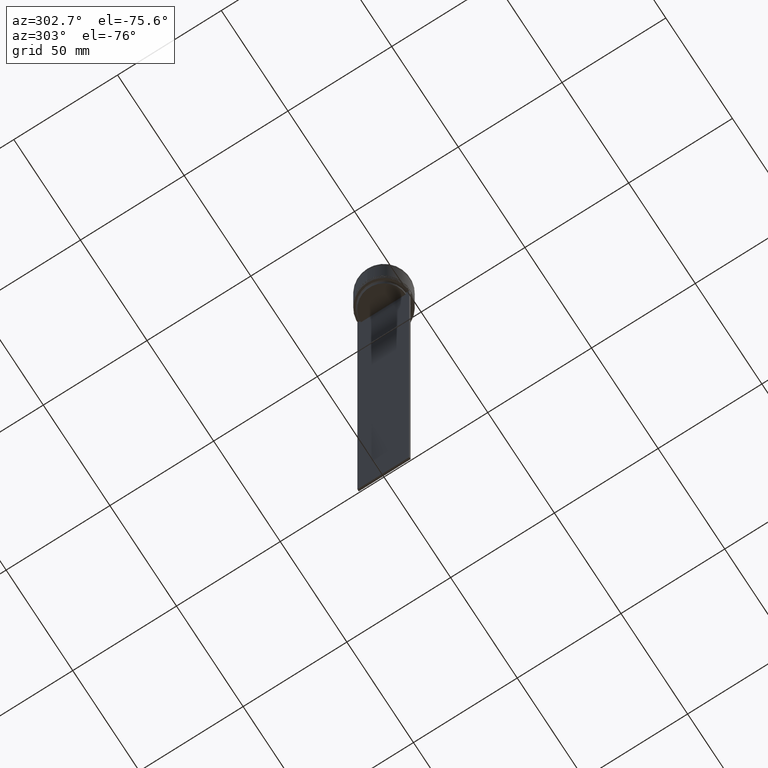
[diagram: clean part render]
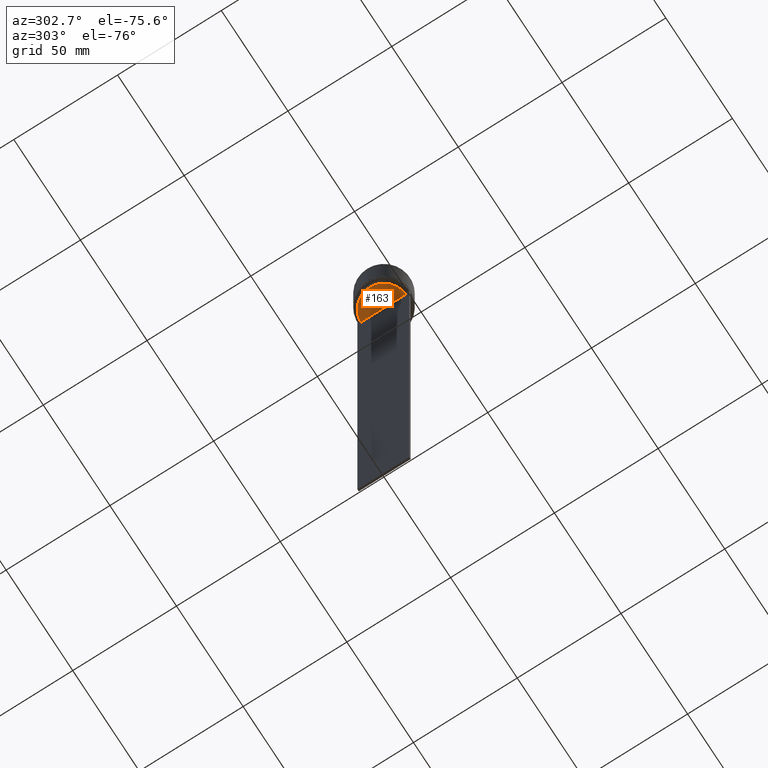
[diagram: same view with one face highlighted and labeled with its STEP entity id]
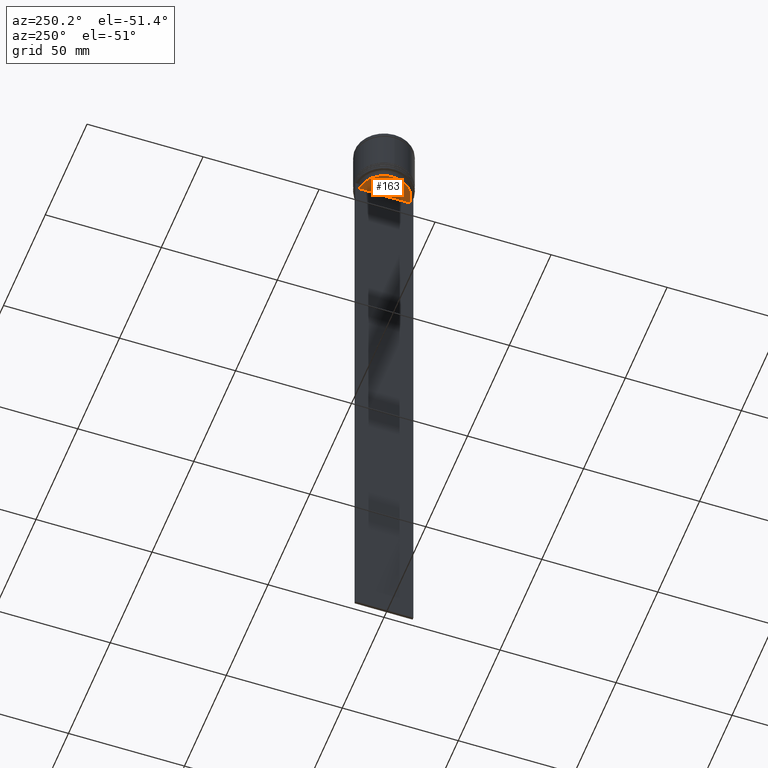
[diagram: same view with one face highlighted and labeled with its STEP entity id]
A machine part, auxiliary view. The second image highlights one B-rep face of the part: STEP entity #163.
A second angle (auxiliary view) of the same face is appended — the face is thin or edge-on in the first view.
In plain terms, the highlighted planar face has unit normal (0, -0, 1).
Its self-contained STEP definition (entity closure, byte-faithful):
#131 = ORIENTED_EDGE ( 'NONE', *, *, #1554, .T. ) ;
#163 = ADVANCED_FACE ( 'NONE', ( #1444 ), #642, .F. ) ;
#368 = VERTEX_POINT ( 'NONE', #1188 ) ;
#482 = DIRECTION ( 'NONE',  ( 1.000000000000000000, 0.000000000000000000, 0.000000000000000000 ) ) ;
#558 = VERTEX_POINT ( 'NONE', #1927 ) ;
#610 = CIRCLE ( 'NONE', #1826, 10.90000000000000924 ) ;
#642 = PLANE ( 'NONE',  #915 ) ;
#836 = CARTESIAN_POINT ( 'NONE',  ( -0.5000000000000000000, 10.90000000000000924, -25.50000000000000000 ) ) ;
#860 = VECTOR ( 'NONE', #1673, 1000.000000000000000 ) ;
#915 = AXIS2_PLACEMENT_3D ( 'NONE', #987, #995, #1949 ) ;
#960 = ORIENTED_EDGE ( 'NONE', *, *, #1063, .F. ) ;
#987 = CARTESIAN_POINT ( 'NONE',  ( 0.000000000000000000, 10.90000000000000924, -25.50000000000000000 ) ) ;
#995 = DIRECTION ( 'NONE',  ( 0.000000000000000000, -0.000000000000000000, 1.000000000000000000 ) ) ;
#1063 = EDGE_CURVE ( 'NONE', #368, #558, #610, .T. ) ;
#1139 = CARTESIAN_POINT ( 'NONE',  ( 0.000000000000000000, 0.000000000000000000, -25.50000000000000000 ) ) ;
#1188 = CARTESIAN_POINT ( 'NONE',  ( -0.5000000000000000000, 10.88852607105296855, -25.50000000000000000 ) ) ;
#1444 = FACE_OUTER_BOUND ( 'NONE', #1672, .T. ) ;
#1554 = EDGE_CURVE ( 'NONE', #368, #558, #1652, .T. ) ;
#1652 = LINE ( 'NONE', #836, #860 ) ;
#1672 = EDGE_LOOP ( 'NONE', ( #960, #131 ) ) ;
#1673 = DIRECTION ( 'NONE',  ( 0.000000000000000000, -1.000000000000000000, 0.000000000000000000 ) ) ;
#1826 = AXIS2_PLACEMENT_3D ( 'NONE', #1139, #1923, #482 ) ;
#1923 = DIRECTION ( 'NONE',  ( -0.000000000000000000, -0.000000000000000000, 1.000000000000000000 ) ) ;
#1927 = CARTESIAN_POINT ( 'NONE',  ( -0.5000000000000000000, -10.88852607105296855, -25.50000000000000000 ) ) ;
#1949 = DIRECTION ( 'NONE',  ( 1.000000000000000000, 0.000000000000000000, 0.000000000000000000 ) ) ;